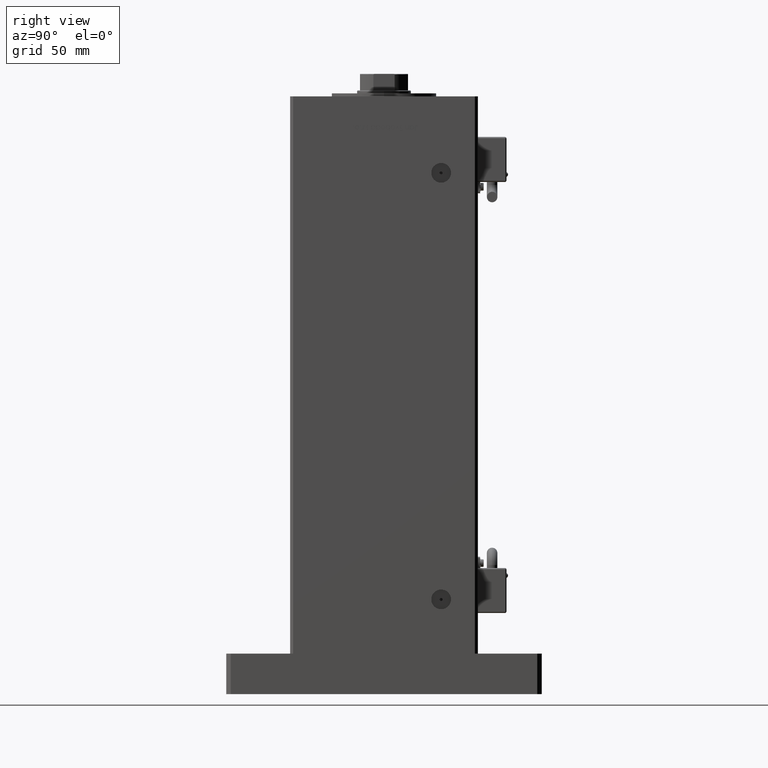
[diagram: clean part render]
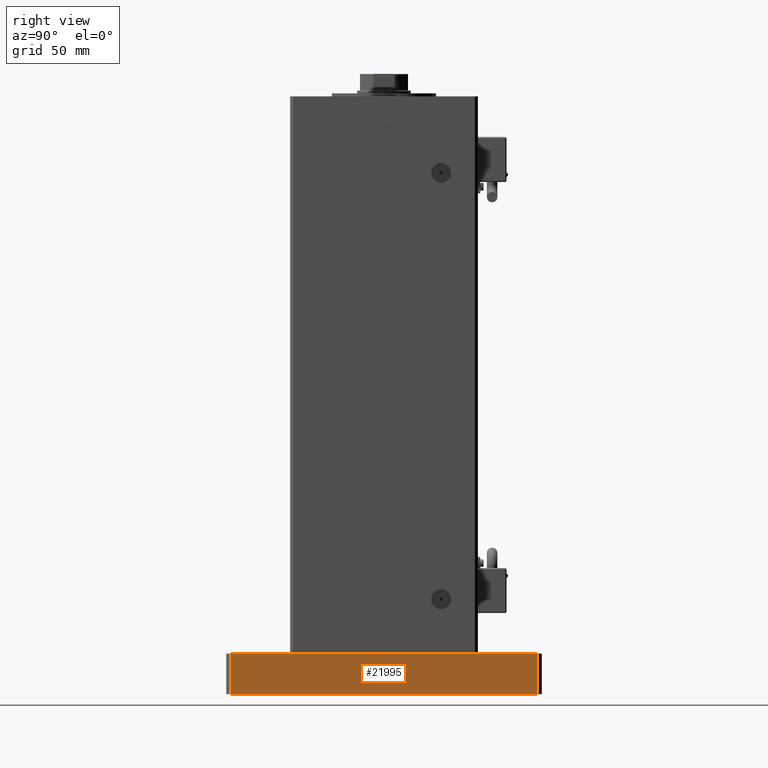
[diagram: same view with one face highlighted and labeled with its STEP entity id]
A machine part, right view. The second image highlights one B-rep face of the part: STEP entity #21995.
In plain terms, the highlighted planar face has unit normal (-1, 0, 0).
Its self-contained STEP definition (entity closure, byte-faithful):
#333 = CARTESIAN_POINT ( 'NONE',  ( 75.00000000000000000, -101.9999999999999005, 0.000000000000000000 ) ) ;
#959 = ORIENTED_EDGE ( 'NONE', *, *, #35766, .F. ) ;
#3473 = VECTOR ( 'NONE', #32613, 1000.000000000000000 ) ;
#6038 = DIRECTION ( 'NONE',  ( -6.802837160693364103E-17, -1.000000000000000000, 0.000000000000000000 ) ) ;
#6969 = CARTESIAN_POINT ( 'NONE',  ( 75.00000000000000000, -101.9999999999999005, 27.00000000000000000 ) ) ;
#10079 = CARTESIAN_POINT ( 'NONE',  ( 75.00000000000000000, -101.9999999999999005, 27.00000000000000000 ) ) ;
#10334 = CARTESIAN_POINT ( 'NONE',  ( 75.00000000000001421, 102.0000000000000142, 0.000000000000000000 ) ) ;
#14322 = AXIS2_PLACEMENT_3D ( 'NONE', #54171, #24657, #6038 ) ;
#15485 = FACE_OUTER_BOUND ( 'NONE', #48148, .T. ) ;
#19232 = LINE ( 'NONE', #10079, #20402 ) ;
#19720 = CARTESIAN_POINT ( 'NONE',  ( 75.00000000000000000, -101.9999999999999005, 27.00000000000000000 ) ) ;
#20402 = VECTOR ( 'NONE', #53905, 1000.000000000000000 ) ;
#20418 = ORIENTED_EDGE ( 'NONE', *, *, #26328, .F. ) ;
#21959 = VECTOR ( 'NONE', #41950, 1000.000000000000000 ) ;
#21995 = ADVANCED_FACE ( 'NONE', ( #15485 ), #49879, .F. ) ;
#23418 = CARTESIAN_POINT ( 'NONE',  ( 75.00000000000000000, -101.9999999999999005, 0.000000000000000000 ) ) ;
#24418 = VERTEX_POINT ( 'NONE', #35963 ) ;
#24657 = DIRECTION ( 'NONE',  ( -1.000000000000000000, 6.802837160693364103E-17, 0.000000000000000000 ) ) ;
#26328 = EDGE_CURVE ( 'NONE', #24418, #48665, #49517, .T. ) ;
#27295 = DIRECTION ( 'NONE',  ( 6.802837160693364103E-17, 1.000000000000000000, 0.000000000000000000 ) ) ;
#28443 = VERTEX_POINT ( 'NONE', #19720 ) ;
#29376 = ORIENTED_EDGE ( 'NONE', *, *, #35895, .T. ) ;
#32613 = DIRECTION ( 'NONE',  ( -0.000000000000000000, -0.000000000000000000, -1.000000000000000000 ) ) ;
#32876 = EDGE_CURVE ( 'NONE', #43741, #48665, #39636, .T. ) ;
#33182 = CARTESIAN_POINT ( 'NONE',  ( 75.00000000000001421, 102.0000000000000142, 27.00000000000000000 ) ) ;
#34456 = LINE ( 'NONE', #6969, #21959 ) ;
#35766 = EDGE_CURVE ( 'NONE', #28443, #24418, #34456, .T. ) ;
#35895 = EDGE_CURVE ( 'NONE', #28443, #43741, #19232, .T. ) ;
#35963 = CARTESIAN_POINT ( 'NONE',  ( 75.00000000000001421, 102.0000000000000142, 27.00000000000000000 ) ) ;
#39410 = VECTOR ( 'NONE', #27295, 1000.000000000000000 ) ;
#39636 = LINE ( 'NONE', #333, #39410 ) ;
#40744 = ORIENTED_EDGE ( 'NONE', *, *, #32876, .T. ) ;
#41950 = DIRECTION ( 'NONE',  ( 6.802837160693364103E-17, 1.000000000000000000, 0.000000000000000000 ) ) ;
#43741 = VERTEX_POINT ( 'NONE', #23418 ) ;
#48148 = EDGE_LOOP ( 'NONE', ( #40744, #20418, #959, #29376 ) ) ;
#48665 = VERTEX_POINT ( 'NONE', #10334 ) ;
#49517 = LINE ( 'NONE', #33182, #3473 ) ;
#49879 = PLANE ( 'NONE',  #14322 ) ;
#53905 = DIRECTION ( 'NONE',  ( -0.000000000000000000, -0.000000000000000000, -1.000000000000000000 ) ) ;
#54171 = CARTESIAN_POINT ( 'NONE',  ( 75.00000000000000000, -101.9999999999999005, 27.00000000000000000 ) ) ;